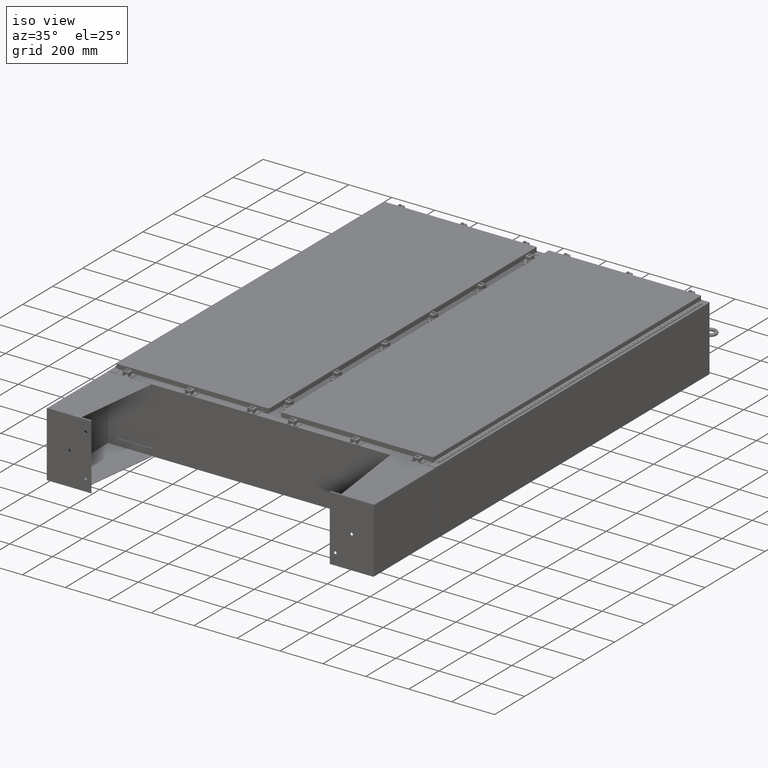
[diagram: clean part render]
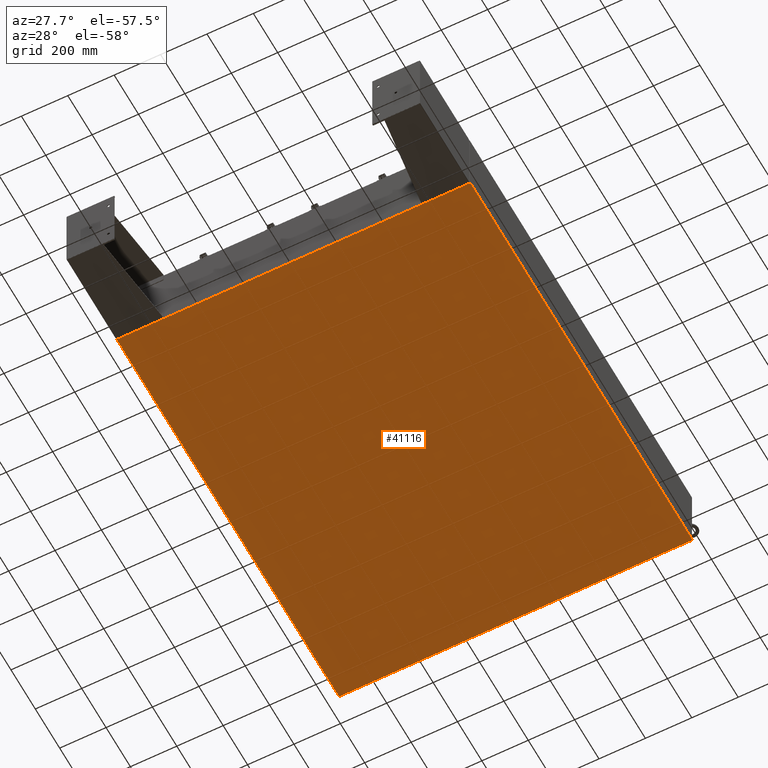
[diagram: tour spotlight — one face highlighted and labeled with its STEP entity id]
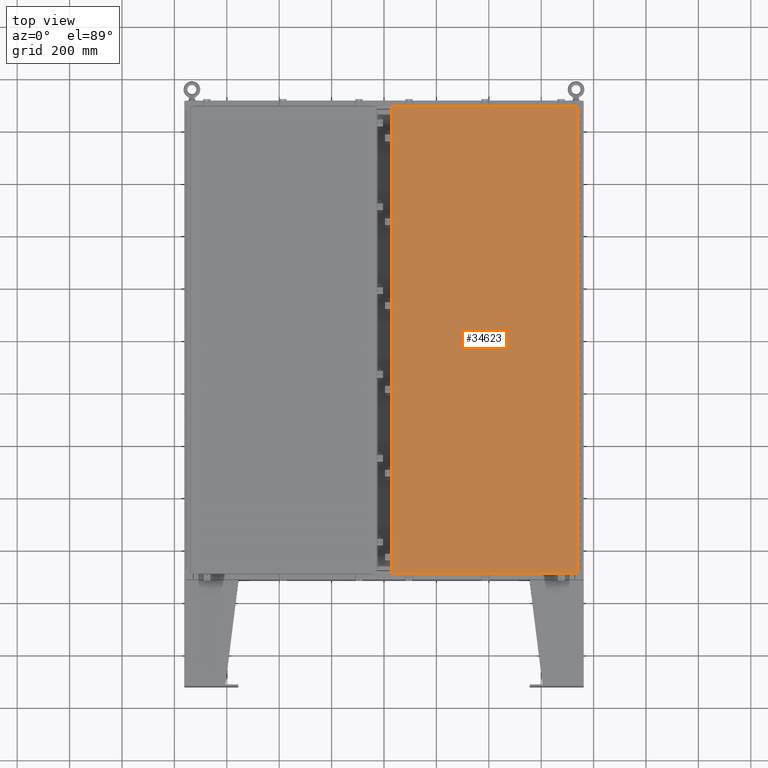
[diagram: tour spotlight — one face highlighted and labeled with its STEP entity id]
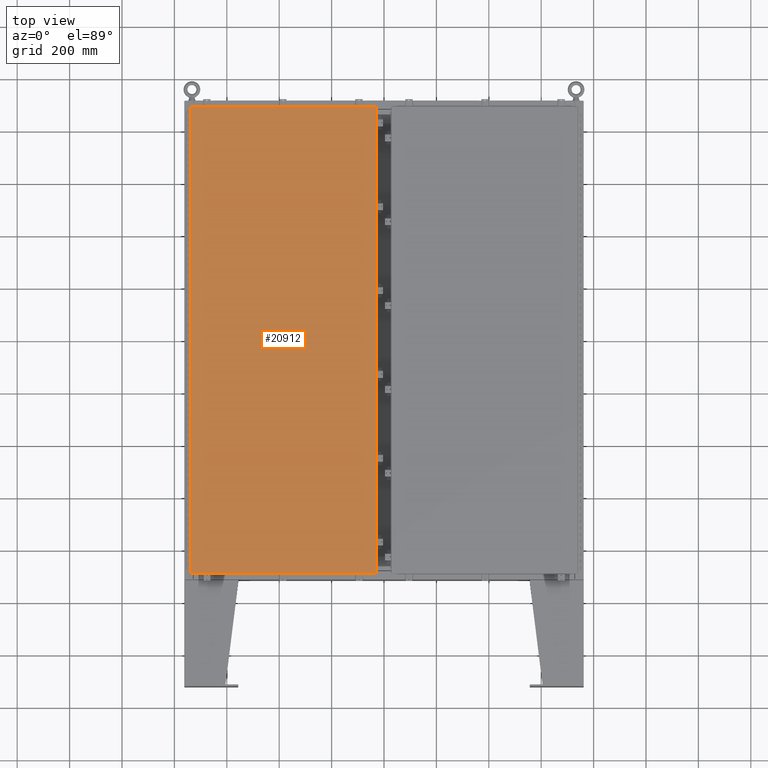
[diagram: tour spotlight — one face highlighted and labeled with its STEP entity id]
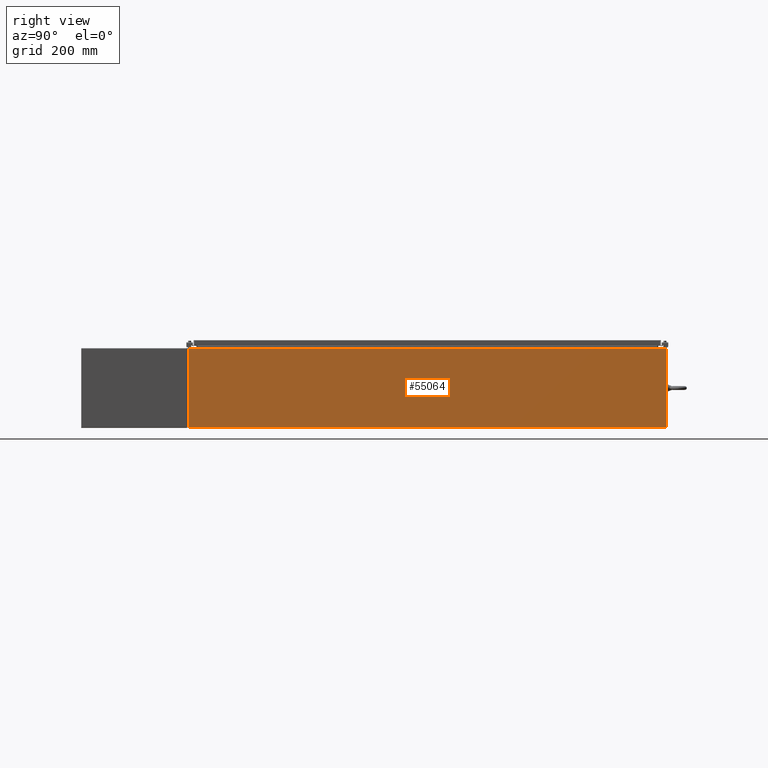
[diagram: tour spotlight — one face highlighted and labeled with its STEP entity id]
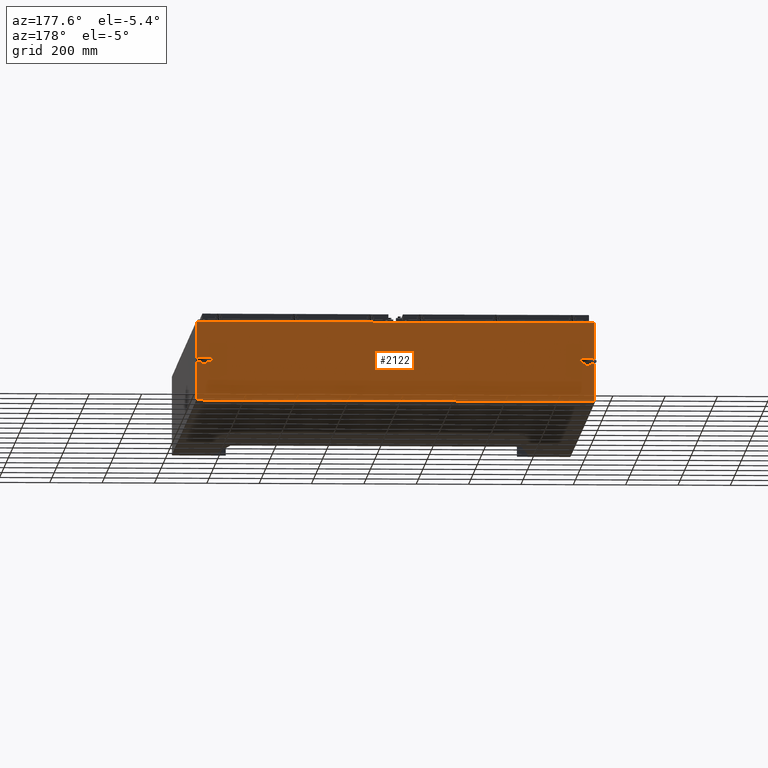
[diagram: tour spotlight — one face highlighted and labeled with its STEP entity id]
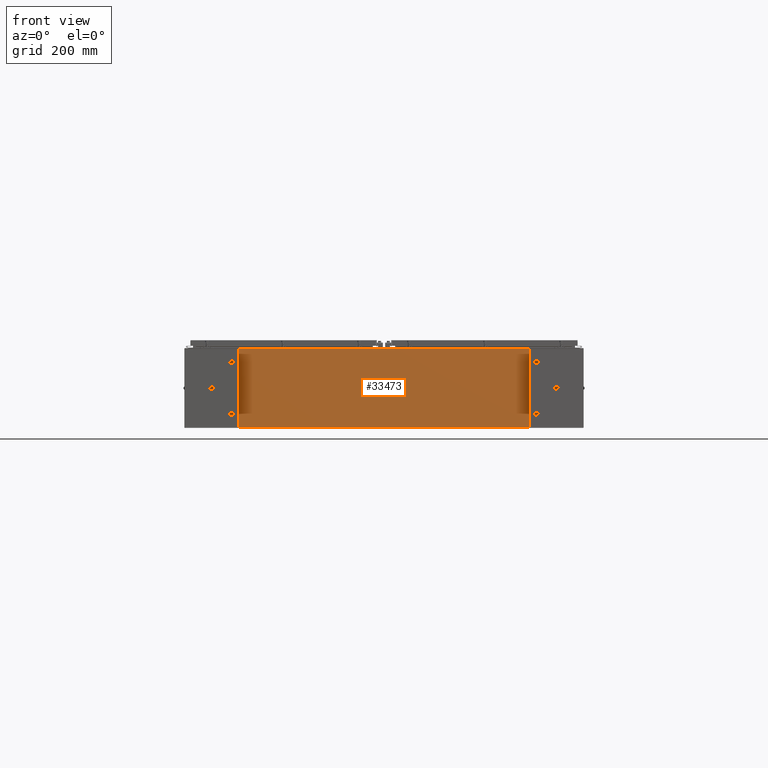
[diagram: tour spotlight — one face highlighted and labeled with its STEP entity id]
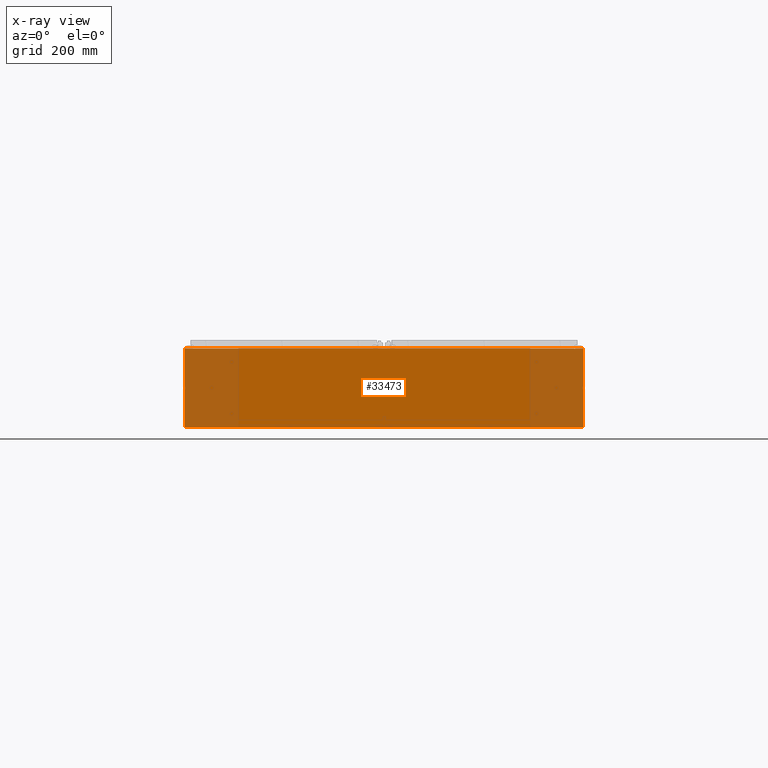
[diagram: x-ray of the same camera — body ghosted, this tour face saturated]
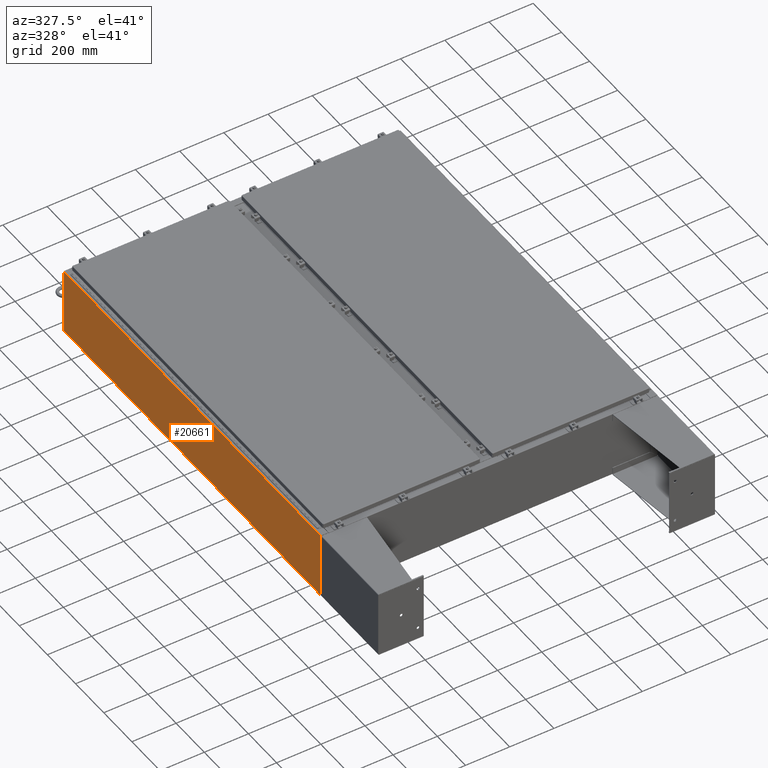
[diagram: tour spotlight — one face highlighted and labeled with its STEP entity id]
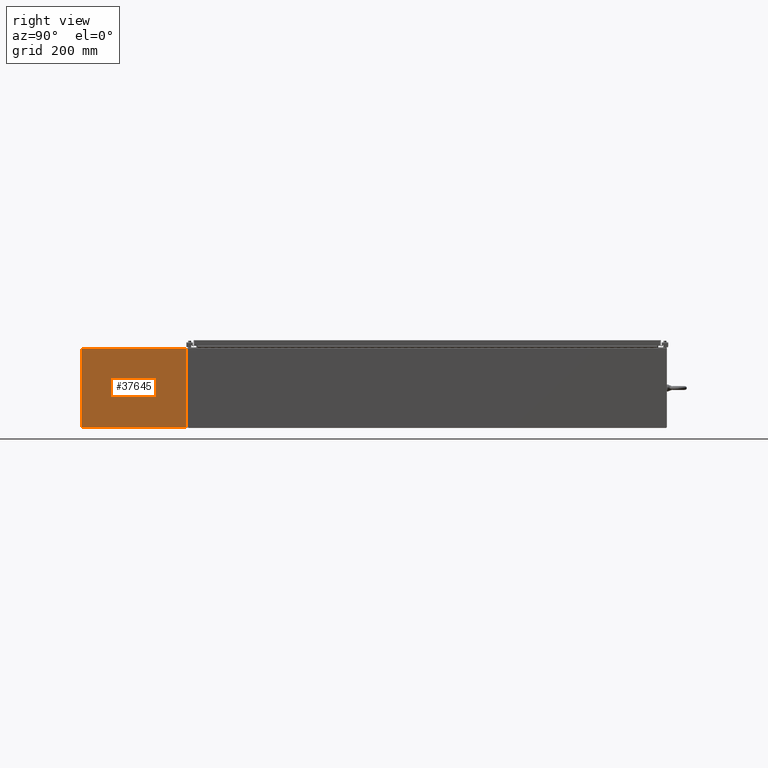
[diagram: tour spotlight — one face highlighted and labeled with its STEP entity id]
A machine part: a face-by-face anatomy tour. The part has 7158 B-rep faces; the first image is the clean iso view, then the 8 largest visible faces are spotlighted one at a time (largest first), each with its STEP entity span.

Face 1 — auxiliary view, entity #41116. In plain terms, the highlighted planar face has unit normal (0, 0, -1).
Definition (entity closure, byte-faithful):
#937 = DIRECTION ( 'NONE',  ( -0.0000000000000000000, -1.000000000000000000, -0.0000000000000000000 ) ) ;
#1901 = CARTESIAN_POINT ( 'NONE',  ( 29.91230000000000200, 35.92529999999999300, -0.07469999999999994700 ) ) ;
#4598 = LINE ( 'NONE', #50230, #34588 ) ;
#5244 = ORIENTED_EDGE ( 'NONE', *, *, #10549, .T. ) ;
#5724 = VERTEX_POINT ( 'NONE', #66764 ) ;
#9556 = EDGE_LOOP ( 'NONE', ( #17382, #48218, #41709, #5244 ) ) ;
#10549 = EDGE_CURVE ( 'NONE', #43401, #29275, #69427, .T. ) ;
#14454 = DIRECTION ( 'NONE',  ( -1.000000000000000000, -0.0000000000000000000, -0.0000000000000000000 ) ) ;
#17382 = ORIENTED_EDGE ( 'NONE', *, *, #24630, .F. ) ;
#17668 = CARTESIAN_POINT ( 'NONE',  ( 0.0000000000000000000, 0.0000000000000000000, -0.07470000000000000300 ) ) ;
#18616 = VERTEX_POINT ( 'NONE', #64485 ) ;
#19640 = DIRECTION ( 'NONE',  ( -0.0000000000000000000, 1.000000000000000000, -0.0000000000000000000 ) ) ;
#23677 = PLANE ( 'NONE',  #61835 ) ;
#24630 = EDGE_CURVE ( 'NONE', #5724, #29275, #25068, .T. ) ;
#25068 = LINE ( 'NONE', #57623, #42822 ) ;
#26581 = VECTOR ( 'NONE', #19640, 39.37007874015748100 ) ;
#28429 = LINE ( 'NONE', #43620, #26581 ) ;
#29275 = VERTEX_POINT ( 'NONE', #39884 ) ;
#29666 = DIRECTION ( 'NONE',  ( -1.000000000000000000, 0.0000000000000000000, -0.0000000000000000000 ) ) ;
#34588 = VECTOR ( 'NONE', #14454, 39.37007874015748100 ) ;
#39884 = CARTESIAN_POINT ( 'NONE',  ( 29.91229999999999800, -35.92530000000000000, -0.07470000000000000300 ) ) ;
#41116 = ADVANCED_FACE ( 'NONE', ( #50625 ), #23677, .T. ) ;
#41709 = ORIENTED_EDGE ( 'NONE', *, *, #72864, .F. ) ;
#42822 = VECTOR ( 'NONE', #45939, 39.37007874015748100 ) ;
#43401 = VERTEX_POINT ( 'NONE', #66487 ) ;
#43620 = CARTESIAN_POINT ( 'NONE',  ( -29.91230000000000900, -35.92530000000000000, -0.07469999999999994700 ) ) ;
#45939 = DIRECTION ( 'NONE',  ( 1.000000000000000000, 0.0000000000000000000, 0.0000000000000000000 ) ) ;
#48218 = ORIENTED_EDGE ( 'NONE', *, *, #66021, .T. ) ;
#50230 = CARTESIAN_POINT ( 'NONE',  ( -30.00000000000000700, 35.92529999999999300, -0.07470000000000000300 ) ) ;
#50625 = FACE_OUTER_BOUND ( 'NONE', #9556, .T. ) ;
#55554 = VECTOR ( 'NONE', #937, 39.37007874015748100 ) ;
#57623 = CARTESIAN_POINT ( 'NONE',  ( -30.00000000000000700, -35.92530000000000000, -0.07470000000000000300 ) ) ;
#61835 = AXIS2_PLACEMENT_3D ( 'NONE', #17668, #65338, #29666 ) ;
#64485 = CARTESIAN_POINT ( 'NONE',  ( -29.91230000000000900, 35.92529999999999300, -0.07470000000000000300 ) ) ;
#65338 = DIRECTION ( 'NONE',  ( 0.0000000000000000000, 0.0000000000000000000, -1.000000000000000000 ) ) ;
#66021 = EDGE_CURVE ( 'NONE', #5724, #18616, #28429, .T. ) ;
#66487 = CARTESIAN_POINT ( 'NONE',  ( 29.91230000000000200, 35.92529999999999300, -0.07469999999999994700 ) ) ;
#66764 = CARTESIAN_POINT ( 'NONE',  ( -29.91230000000000900, -35.92530000000000000, -0.07469999999999994700 ) ) ;
#69427 = LINE ( 'NONE', #1901, #55554 ) ;
#72864 = EDGE_CURVE ( 'NONE', #43401, #18616, #4598, .T. ) ;

Face 2 — top view, entity #34623. In plain terms, the highlighted planar face has unit normal (0, 0, -1).
Definition (entity closure, byte-faithful):
#45 = ORIENTED_EDGE ( 'NONE', *, *, #32141, .T. ) ;
#676 = LINE ( 'NONE', #41792, #12906 ) ;
#3732 = ORIENTED_EDGE ( 'NONE', *, *, #65523, .T. ) ;
#9393 = ORIENTED_EDGE ( 'NONE', *, *, #56529, .T. ) ;
#9497 = AXIS2_PLACEMENT_3D ( 'NONE', #41561, #35852, #25033 ) ;
#9643 = VERTEX_POINT ( 'NONE', #49554 ) ;
#10762 = VECTOR ( 'NONE', #24336, 39.37007874015748100 ) ;
#10910 = EDGE_LOOP ( 'NONE', ( #26142, #45, #3732, #9393 ) ) ;
#12906 = VECTOR ( 'NONE', #60009, 39.37007874015748100 ) ;
#15176 = CARTESIAN_POINT ( 'NONE',  ( -13.91780000000000500, -35.01820000000000700, 2.185478394931410600E-015 ) ) ;
#15321 = FACE_OUTER_BOUND ( 'NONE', #10910, .T. ) ;
#17992 = VERTEX_POINT ( 'NONE', #27349 ) ;
#18288 = VERTEX_POINT ( 'NONE', #75949 ) ;
#24336 = DIRECTION ( 'NONE',  ( -1.000000000000000000, -0.0000000000000000000, -0.0000000000000000000 ) ) ;
#25033 = DIRECTION ( 'NONE',  ( -1.000000000000000000, 0.0000000000000000000, -0.0000000000000000000 ) ) ;
#26142 = ORIENTED_EDGE ( 'NONE', *, *, #54597, .T. ) ;
#27349 = CARTESIAN_POINT ( 'NONE',  ( 13.91779999999999300, 35.01820000000000000, 2.185478394931410600E-015 ) ) ;
#32141 = EDGE_CURVE ( 'NONE', #9643, #17992, #676, .T. ) ;
#34623 = ADVANCED_FACE ( 'NONE', ( #15321 ), #47582, .F. ) ;
#35852 = DIRECTION ( 'NONE',  ( 0.0000000000000000000, 0.0000000000000000000, -1.000000000000000000 ) ) ;
#39748 = VECTOR ( 'NONE', #64553, 39.37007874015748100 ) ;
#40598 = CARTESIAN_POINT ( 'NONE',  ( -13.91780000000000500, 35.01819999999999300, 0.0000000000000000000 ) ) ;
#41561 = CARTESIAN_POINT ( 'NONE',  ( 0.0000000000000000000, 0.0000000000000000000, 0.0000000000000000000 ) ) ;
#41610 = LINE ( 'NONE', #40598, #39748 ) ;
#41792 = CARTESIAN_POINT ( 'NONE',  ( 13.91779999999999300, -35.01820000000000000, 0.0000000000000000000 ) ) ;
#44924 = DIRECTION ( 'NONE',  ( 1.000000000000000000, -0.0000000000000000000, -0.0000000000000000000 ) ) ;
#45526 = LINE ( 'NONE', #15176, #75131 ) ;
#47582 = PLANE ( 'NONE',  #9497 ) ;
#49554 = CARTESIAN_POINT ( 'NONE',  ( 13.91779999999999300, -35.01820000000000000, 0.0000000000000000000 ) ) ;
#54597 = EDGE_CURVE ( 'NONE', #74589, #9643, #45526, .T. ) ;
#56529 = EDGE_CURVE ( 'NONE', #18288, #74589, #41610, .T. ) ;
#58354 = LINE ( 'NONE', #71864, #10762 ) ;
#60009 = DIRECTION ( 'NONE',  ( 0.0000000000000000000, 1.000000000000000000, 0.0000000000000000000 ) ) ;
#62674 = CARTESIAN_POINT ( 'NONE',  ( -13.91780000000000500, -35.01820000000000700, 2.185478394931410600E-015 ) ) ;
#64553 = DIRECTION ( 'NONE',  ( 0.0000000000000000000, -1.000000000000000000, 0.0000000000000000000 ) ) ;
#65523 = EDGE_CURVE ( 'NONE', #17992, #18288, #58354, .T. ) ;
#71864 = CARTESIAN_POINT ( 'NONE',  ( 13.91779999999999300, 35.01820000000000000, 2.185478394931410600E-015 ) ) ;
#74589 = VERTEX_POINT ( 'NONE', #62674 ) ;
#75131 = VECTOR ( 'NONE', #44924, 39.37007874015748100 ) ;
#75949 = CARTESIAN_POINT ( 'NONE',  ( -13.91780000000000500, 35.01819999999999300, 0.0000000000000000000 ) ) ;

Face 3 — top view, entity #20912. In plain terms, the highlighted planar face has unit normal (0, 0, -1).
Definition (entity closure, byte-faithful):
#2617 = EDGE_LOOP ( 'NONE', ( #4711, #12112, #33565, #37474 ) ) ;
#4711 = ORIENTED_EDGE ( 'NONE', *, *, #34530, .T. ) ;
#5405 = DIRECTION ( 'NONE',  ( 0.0000000000000000000, -1.000000000000000000, 0.0000000000000000000 ) ) ;
#5675 = CARTESIAN_POINT ( 'NONE',  ( -13.91780000000000200, 35.01819999999999300, 0.0000000000000000000 ) ) ;
#6441 = EDGE_CURVE ( 'NONE', #32751, #47695, #10528, .T. ) ;
#6737 = AXIS2_PLACEMENT_3D ( 'NONE', #74888, #73048, #72983 ) ;
#9061 = LINE ( 'NONE', #34185, #70552 ) ;
#10528 = LINE ( 'NONE', #13371, #24562 ) ;
#11355 = LINE ( 'NONE', #5675, #69087 ) ;
#12112 = ORIENTED_EDGE ( 'NONE', *, *, #6441, .T. ) ;
#13029 = DIRECTION ( 'NONE',  ( 0.0000000000000000000, 1.000000000000000000, 0.0000000000000000000 ) ) ;
#13371 = CARTESIAN_POINT ( 'NONE',  ( 13.91779999999999600, -35.01820000000000000, 0.0000000000000000000 ) ) ;
#15053 = VERTEX_POINT ( 'NONE', #15667 ) ;
#15667 = CARTESIAN_POINT ( 'NONE',  ( -13.91780000000000200, 35.01819999999999300, 0.0000000000000000000 ) ) ;
#20912 = ADVANCED_FACE ( 'NONE', ( #76874 ), #73141, .F. ) ;
#22822 = VECTOR ( 'NONE', #76311, 39.37007874015748100 ) ;
#24562 = VECTOR ( 'NONE', #13029, 39.37007874015748100 ) ;
#32751 = VERTEX_POINT ( 'NONE', #49796 ) ;
#33565 = ORIENTED_EDGE ( 'NONE', *, *, #76162, .T. ) ;
#34185 = CARTESIAN_POINT ( 'NONE',  ( 13.91779999999999600, 35.01820000000000000, 2.185478394931410600E-015 ) ) ;
#34530 = EDGE_CURVE ( 'NONE', #73518, #32751, #68418, .T. ) ;
#37474 = ORIENTED_EDGE ( 'NONE', *, *, #48427, .T. ) ;
#40802 = CARTESIAN_POINT ( 'NONE',  ( -13.91780000000000200, -35.01820000000000700, 2.185478394931410600E-015 ) ) ;
#44374 = CARTESIAN_POINT ( 'NONE',  ( -13.91780000000000200, -35.01820000000000700, 2.185478394931410600E-015 ) ) ;
#47695 = VERTEX_POINT ( 'NONE', #64742 ) ;
#48427 = EDGE_CURVE ( 'NONE', #15053, #73518, #11355, .T. ) ;
#49796 = CARTESIAN_POINT ( 'NONE',  ( 13.91779999999999600, -35.01820000000000000, 0.0000000000000000000 ) ) ;
#64742 = CARTESIAN_POINT ( 'NONE',  ( 13.91779999999999600, 35.01820000000000000, 2.185478394931410600E-015 ) ) ;
#68418 = LINE ( 'NONE', #40802, #22822 ) ;
#69087 = VECTOR ( 'NONE', #5405, 39.37007874015748100 ) ;
#69767 = DIRECTION ( 'NONE',  ( -1.000000000000000000, -0.0000000000000000000, -0.0000000000000000000 ) ) ;
#70552 = VECTOR ( 'NONE', #69767, 39.37007874015748100 ) ;
#72983 = DIRECTION ( 'NONE',  ( -1.000000000000000000, 0.0000000000000000000, -0.0000000000000000000 ) ) ;
#73048 = DIRECTION ( 'NONE',  ( 0.0000000000000000000, 0.0000000000000000000, -1.000000000000000000 ) ) ;
#73141 = PLANE ( 'NONE',  #6737 ) ;
#73518 = VERTEX_POINT ( 'NONE', #44374 ) ;
#74888 = CARTESIAN_POINT ( 'NONE',  ( 0.0000000000000000000, 0.0000000000000000000, 0.0000000000000000000 ) ) ;
#76162 = EDGE_CURVE ( 'NONE', #47695, #15053, #9061, .T. ) ;
#76311 = DIRECTION ( 'NONE',  ( 1.000000000000000000, -0.0000000000000000000, -0.0000000000000000000 ) ) ;
#76874 = FACE_OUTER_BOUND ( 'NONE', #2617, .T. ) ;

Face 4 — right view, entity #55064. In plain terms, the highlighted planar face has unit normal (-1, -0, 0).
Definition (entity closure, byte-faithful):
#1168 = EDGE_LOOP ( 'NONE', ( #34542, #13906, #39160, #61565 ) ) ;
#2365 = AXIS2_PLACEMENT_3D ( 'NONE', #38791, #15296, #57010 ) ;
#3346 = FACE_OUTER_BOUND ( 'NONE', #1168, .T. ) ;
#7751 = DIRECTION ( 'NONE',  ( 2.019411370653570300E-031, -1.000000000000000000, -6.602337716106686600E-046 ) ) ;
#9252 = PLANE ( 'NONE',  #2365 ) ;
#13906 = ORIENTED_EDGE ( 'NONE', *, *, #70642, .T. ) ;
#15296 = DIRECTION ( 'NONE',  ( -1.000000000000000000, -2.019411370653570300E-031, 3.319545939341924800E-015 ) ) ;
#19550 = CARTESIAN_POINT ( 'NONE',  ( 29.99999999999999600, -35.92530000000000000, 0.01299999999999767800 ) ) ;
#21793 = CARTESIAN_POINT ( 'NONE',  ( 29.99999999999999600, 35.92529999999999300, 0.01299999999999767800 ) ) ;
#22251 = DIRECTION ( 'NONE',  ( 3.319545939341924800E-015, 3.688384377046583100E-016, 1.000000000000000000 ) ) ;
#26064 = CARTESIAN_POINT ( 'NONE',  ( 30.00000000000004600, 35.92529999999997900, 11.83760000000000700 ) ) ;
#26699 = DIRECTION ( 'NONE',  ( -0.0000000000000000000, -1.000000000000000000, -0.0000000000000000000 ) ) ;
#27275 = VERTEX_POINT ( 'NONE', #62230 ) ;
#28473 = VERTEX_POINT ( 'NONE', #61355 ) ;
#31772 = EDGE_CURVE ( 'NONE', #39145, #27275, #67026, .T. ) ;
#34542 = ORIENTED_EDGE ( 'NONE', *, *, #31772, .T. ) ;
#38473 = VECTOR ( 'NONE', #22251, 39.37007874015748100 ) ;
#38482 = CARTESIAN_POINT ( 'NONE',  ( 30.00000000000004600, 35.92530000000000000, 11.83760000000000700 ) ) ;
#38791 = CARTESIAN_POINT ( 'NONE',  ( 29.99999999999999600, 6.058234111960710600E-030, -9.984719183626930600E-014 ) ) ;
#39145 = VERTEX_POINT ( 'NONE', #26064 ) ;
#39160 = ORIENTED_EDGE ( 'NONE', *, *, #50724, .F. ) ;
#50724 = EDGE_CURVE ( 'NONE', #54148, #28473, #65569, .T. ) ;
#51261 = VECTOR ( 'NONE', #26699, 39.37007874015748100 ) ;
#51314 = VECTOR ( 'NONE', #59838, 39.37007874015748100 ) ;
#53847 = CARTESIAN_POINT ( 'NONE',  ( 29.99999999999999600, -35.92530000000000000, -9.984719183626930600E-014 ) ) ;
#54148 = VERTEX_POINT ( 'NONE', #21793 ) ;
#55064 = ADVANCED_FACE ( 'NONE', ( #3346 ), #9252, .F. ) ;
#56163 = LINE ( 'NONE', #57946, #38473 ) ;
#57010 = DIRECTION ( 'NONE',  ( 3.319545939341924800E-015, 0.0000000000000000000, 1.000000000000000000 ) ) ;
#57946 = CARTESIAN_POINT ( 'NONE',  ( 29.99999999999999600, 35.92529999999999300, -1.130978233623404600E-013 ) ) ;
#59838 = DIRECTION ( 'NONE',  ( -3.319545939341924800E-015, 0.0000000000000000000, -1.000000000000000000 ) ) ;
#60730 = EDGE_CURVE ( 'NONE', #54148, #39145, #56163, .T. ) ;
#61355 = CARTESIAN_POINT ( 'NONE',  ( 29.99999999999999600, -35.92530000000000000, 0.01299999999999767500 ) ) ;
#61565 = ORIENTED_EDGE ( 'NONE', *, *, #60730, .T. ) ;
#62230 = CARTESIAN_POINT ( 'NONE',  ( 30.00000000000003600, -35.92530000000000700, 11.83759999999999500 ) ) ;
#63721 = VECTOR ( 'NONE', #7751, 39.37007874015748100 ) ;
#65569 = LINE ( 'NONE', #19550, #63721 ) ;
#67026 = LINE ( 'NONE', #38482, #51261 ) ;
#67075 = LINE ( 'NONE', #53847, #51314 ) ;
#70642 = EDGE_CURVE ( 'NONE', #27275, #28473, #67075, .T. ) ;

Face 5 — auxiliary view, entity #2122. In plain terms, the highlighted planar face has unit normal (0, -1, 0).
Definition (entity closure, byte-faithful):
#267 = DIRECTION ( 'NONE',  ( 1.000000000000000000, 0.0000000000000000000, 0.0000000000000000000 ) ) ;
#488 = AXIS2_PLACEMENT_3D ( 'NONE', #70458, #70377, #37840 ) ;
#1353 = ORIENTED_EDGE ( 'NONE', *, *, #48514, .F. ) ;
#1379 = ORIENTED_EDGE ( 'NONE', *, *, #76909, .F. ) ;
#1816 = VECTOR ( 'NONE', #41368, 39.37007874015748100 ) ;
#1837 = VERTEX_POINT ( 'NONE', #41892 ) ;
#2122 = ADVANCED_FACE ( 'NONE', ( #55857, #55066, #40022 ), #28079, .F. ) ;
#2733 = CARTESIAN_POINT ( 'NONE',  ( -28.67454999999998600, 0.0000000000000000000, 5.874950000000000100 ) ) ;
#4177 = CARTESIAN_POINT ( 'NONE',  ( 28.67454999999998200, 0.0000000000000000000, 5.925300000000001800 ) ) ;
#4531 = VERTEX_POINT ( 'NONE', #59567 ) ;
#5168 = ORIENTED_EDGE ( 'NONE', *, *, #28600, .F. ) ;
#5325 = CARTESIAN_POINT ( 'NONE',  ( 28.63720000000000000, 0.0000000000000000000, 0.0000000000000000000 ) ) ;
#7524 = CARTESIAN_POINT ( 'NONE',  ( 28.63720000000000000, 0.0000000000000000000, 5.912299999999999200 ) ) ;
#7654 = VERTEX_POINT ( 'NONE', #7524 ) ;
#7729 = CIRCLE ( 'NONE', #32652, 0.01867499999999949400 ) ;
#8089 = ORIENTED_EDGE ( 'NONE', *, *, #17587, .F. ) ;
#8996 = ORIENTED_EDGE ( 'NONE', *, *, #23605, .T. ) ;
#9794 = AXIS2_PLACEMENT_3D ( 'NONE', #28247, #28339, #27992 ) ;
#9883 = ORIENTED_EDGE ( 'NONE', *, *, #63404, .F. ) ;
#10499 = CARTESIAN_POINT ( 'NONE',  ( -28.67454999999998600, 0.0000000000000000000, 5.925300000000001800 ) ) ;
#12159 = VECTOR ( 'NONE', #63341, 39.37007874015748100 ) ;
#12364 = EDGE_CURVE ( 'NONE', #38281, #62439, #72831, .T. ) ;
#13515 = EDGE_CURVE ( 'NONE', #69771, #65421, #33701, .T. ) ;
#14038 = LINE ( 'NONE', #15668, #12159 ) ;
#14338 = DIRECTION ( 'NONE',  ( 0.0000000000000000000, 0.0000000000000000000, 1.000000000000000000 ) ) ;
#14582 = DIRECTION ( 'NONE',  ( 0.0000000000000000000, 1.000000000000000000, 0.0000000000000000000 ) ) ;
#15125 = CARTESIAN_POINT ( 'NONE',  ( -28.86329999999999500, 0.0000000000000000000, 0.0000000000000000000 ) ) ;
#15512 = EDGE_CURVE ( 'NONE', #38265, #45803, #24652, .T. ) ;
#15668 = CARTESIAN_POINT ( 'NONE',  ( -29.92529999999999300, 0.0000000000000000000, -5.925300000000000000 ) ) ;
#16261 = ORIENTED_EDGE ( 'NONE', *, *, #13515, .T. ) ;
#16382 = ORIENTED_EDGE ( 'NONE', *, *, #15512, .F. ) ;
#17587 = EDGE_CURVE ( 'NONE', #4531, #18705, #74482, .T. ) ;
#17892 = CIRCLE ( 'NONE', #29536, 0.3750000000000008300 ) ;
#18523 = DIRECTION ( 'NONE',  ( 0.0000000000000000000, 1.000000000000000000, -0.0000000000000000000 ) ) ;
#18705 = VERTEX_POINT ( 'NONE', #60394 ) ;
#19026 = LINE ( 'NONE', #33384, #64687 ) ;
#19335 = ORIENTED_EDGE ( 'NONE', *, *, #72770, .T. ) ;
#20511 = VECTOR ( 'NONE', #267, 39.37007874015748100 ) ;
#21767 = EDGE_CURVE ( 'NONE', #39211, #64353, #62923, .T. ) ;
#23452 = VERTEX_POINT ( 'NONE', #69974 ) ;
#23605 = EDGE_CURVE ( 'NONE', #54184, #69771, #41093, .T. ) ;
#24652 = CIRCLE ( 'NONE', #73768, 0.3750000000000008300 ) ;
#24726 = ORIENTED_EDGE ( 'NONE', *, *, #12364, .T. ) ;
#24911 = DIRECTION ( 'NONE',  ( -0.0000000000000000000, 1.000000000000000000, -0.0000000000000000000 ) ) ;
#25339 = CARTESIAN_POINT ( 'NONE',  ( -28.86329999999999500, 0.0000000000000000000, -0.3750000000000008300 ) ) ;
#26816 = ORIENTED_EDGE ( 'NONE', *, *, #66664, .T. ) ;
#27225 = CARTESIAN_POINT ( 'NONE',  ( 28.67455000000051200, 0.0000000000000000000, 2.489259891826876500E-012 ) ) ;
#27301 = VECTOR ( 'NONE', #32150, 39.37007874015748100 ) ;
#27494 = DIRECTION ( 'NONE',  ( 0.0000000000000000000, 0.0000000000000000000, -1.000000000000000000 ) ) ;
#27668 = EDGE_CURVE ( 'NONE', #57886, #39211, #7729, .T. ) ;
#27992 = DIRECTION ( 'NONE',  ( 0.0000000000000000000, -0.0000000000000000000, -1.000000000000000000 ) ) ;
#28079 = PLANE ( 'NONE',  #9794 ) ;
#28247 = CARTESIAN_POINT ( 'NONE',  ( 0.0000000000000000000, 0.0000000000000000000, 0.0000000000000000000 ) ) ;
#28339 = DIRECTION ( 'NONE',  ( 0.0000000000000000000, -1.000000000000000000, 0.0000000000000000000 ) ) ;
#28420 = ORIENTED_EDGE ( 'NONE', *, *, #21767, .F. ) ;
#28600 = EDGE_CURVE ( 'NONE', #54184, #23452, #46057, .T. ) ;
#29536 = AXIS2_PLACEMENT_3D ( 'NONE', #54252, #18523, #60217 ) ;
#29658 = CARTESIAN_POINT ( 'NONE',  ( -29.92529999999999300, 0.0000000000000000000, 5.925300000000001800 ) ) ;
#29971 = DIRECTION ( 'NONE',  ( 0.0000000000000000000, 1.000000000000000000, 0.0000000000000000000 ) ) ;
#30982 = CARTESIAN_POINT ( 'NONE',  ( 28.65587500000000200, 0.0000000000000000000, 5.874950000000000100 ) ) ;
#31262 = CARTESIAN_POINT ( 'NONE',  ( -29.92529999999999300, 0.0000000000000000000, 5.925300000000001800 ) ) ;
#31485 = EDGE_CURVE ( 'NONE', #1837, #7654, #55939, .T. ) ;
#32150 = DIRECTION ( 'NONE',  ( -0.0000000000000000000, -0.0000000000000000000, 1.000000000000000000 ) ) ;
#32526 = CARTESIAN_POINT ( 'NONE',  ( 28.63720000000000000, 0.0000000000000000000, 5.874950000000000100 ) ) ;
#32652 = AXIS2_PLACEMENT_3D ( 'NONE', #60622, #24911, #66555 ) ;
#33247 = ORIENTED_EDGE ( 'NONE', *, *, #27668, .F. ) ;
#33384 = CARTESIAN_POINT ( 'NONE',  ( -29.92529999999999300, 0.0000000000000000000, 5.925300000000001800 ) ) ;
#33701 = LINE ( 'NONE', #41291, #1816 ) ;
#35686 = DIRECTION ( 'NONE',  ( 1.000000000000000000, 0.0000000000000000000, 0.0000000000000000000 ) ) ;
#36972 = DIRECTION ( 'NONE',  ( 0.0000000000000000000, 0.0000000000000000000, 1.000000000000000000 ) ) ;
#36986 = DIRECTION ( 'NONE',  ( 0.0000000000000000000, 0.0000000000000000000, -1.000000000000000000 ) ) ;
#37316 = CARTESIAN_POINT ( 'NONE',  ( -28.67454999999998600, 0.0000000000000000000, 0.0000000000000000000 ) ) ;
#37840 = DIRECTION ( 'NONE',  ( 0.0000000000000000000, 0.0000000000000000000, -1.000000000000000000 ) ) ;
#38265 = VERTEX_POINT ( 'NONE', #25339 ) ;
#38281 = VERTEX_POINT ( 'NONE', #67237 ) ;
#39211 = VERTEX_POINT ( 'NONE', #2733 ) ;
#40022 = FACE_OUTER_BOUND ( 'NONE', #65719, .T. ) ;
#40290 = LINE ( 'NONE', #63188, #70009 ) ;
#41093 = LINE ( 'NONE', #29658, #70773 ) ;
#41168 = DIRECTION ( 'NONE',  ( 0.0000000000000000000, 0.0000000000000000000, 1.000000000000000000 ) ) ;
#41291 = CARTESIAN_POINT ( 'NONE',  ( 29.92530000000000400, 0.0000000000000000000, 5.925300000000001800 ) ) ;
#41368 = DIRECTION ( 'NONE',  ( 0.0000000000000000000, 0.0000000000000000000, -1.000000000000000000 ) ) ;
#41508 = EDGE_CURVE ( 'NONE', #1837, #57886, #40290, .T. ) ;
#41892 = CARTESIAN_POINT ( 'NONE',  ( -28.63719999999998900, 0.0000000000000000000, 5.912299999999999200 ) ) ;
#44200 = EDGE_LOOP ( 'NONE', ( #1353, #8089 ) ) ;
#45803 = VERTEX_POINT ( 'NONE', #62445 ) ;
#46057 = LINE ( 'NONE', #27225, #60008 ) ;
#47114 = VECTOR ( 'NONE', #36972, 39.37007874015748100 ) ;
#48130 = ORIENTED_EDGE ( 'NONE', *, *, #41508, .F. ) ;
#48514 = EDGE_CURVE ( 'NONE', #18705, #4531, #17892, .T. ) ;
#48830 = AXIS2_PLACEMENT_3D ( 'NONE', #30982, #72501, #36986 ) ;
#51517 = VERTEX_POINT ( 'NONE', #32526 ) ;
#52856 = CARTESIAN_POINT ( 'NONE',  ( 29.92530000000000400, 0.0000000000000000000, 5.925300000000001800 ) ) ;
#53304 = CARTESIAN_POINT ( 'NONE',  ( -29.92529999999999300, 0.0000000000000000000, 5.925300000000001800 ) ) ;
#53797 = CIRCLE ( 'NONE', #48830, 0.01867499999999949400 ) ;
#54184 = VERTEX_POINT ( 'NONE', #4177 ) ;
#54252 = CARTESIAN_POINT ( 'NONE',  ( 28.86329999999999500, 0.0000000000000000000, 0.0000000000000000000 ) ) ;
#55066 = FACE_BOUND ( 'NONE', #63790, .T. ) ;
#55733 = ORIENTED_EDGE ( 'NONE', *, *, #31485, .T. ) ;
#55857 = FACE_BOUND ( 'NONE', #44200, .T. ) ;
#55939 = LINE ( 'NONE', #71697, #20511 ) ;
#56812 = DIRECTION ( 'NONE',  ( 1.000000000000000000, 0.0000000000000000000, 0.0000000000000000000 ) ) ;
#57674 = CARTESIAN_POINT ( 'NONE',  ( 29.92530000000000400, 0.0000000000000000000, -5.925300000000000000 ) ) ;
#57886 = VERTEX_POINT ( 'NONE', #72513 ) ;
#59567 = CARTESIAN_POINT ( 'NONE',  ( 28.86329999999999500, 0.0000000000000000000, -0.3750000000000008300 ) ) ;
#60008 = VECTOR ( 'NONE', #68802, 39.37007874015748100 ) ;
#60217 = DIRECTION ( 'NONE',  ( 0.0000000000000000000, 0.0000000000000000000, -1.000000000000000000 ) ) ;
#60394 = CARTESIAN_POINT ( 'NONE',  ( 28.86329999999999500, 0.0000000000000000000, 0.3750000000000008300 ) ) ;
#60622 = CARTESIAN_POINT ( 'NONE',  ( -28.65587499999998800, 0.0000000000000000000, 5.874950000000000100 ) ) ;
#61166 = ORIENTED_EDGE ( 'NONE', *, *, #74188, .F. ) ;
#61370 = VECTOR ( 'NONE', #41168, 39.37007874015748100 ) ;
#62439 = VERTEX_POINT ( 'NONE', #53304 ) ;
#62445 = CARTESIAN_POINT ( 'NONE',  ( -28.86329999999999500, 0.0000000000000000000, 0.3750000000000008300 ) ) ;
#62923 = LINE ( 'NONE', #37316, #47114 ) ;
#63188 = CARTESIAN_POINT ( 'NONE',  ( -28.63719999999998900, 0.0000000000000000000, 0.0000000000000000000 ) ) ;
#63273 = CIRCLE ( 'NONE', #63479, 0.3750000000000008300 ) ;
#63341 = DIRECTION ( 'NONE',  ( -1.000000000000000000, -0.0000000000000000000, -0.0000000000000000000 ) ) ;
#63404 = EDGE_CURVE ( 'NONE', #45803, #38265, #63273, .T. ) ;
#63479 = AXIS2_PLACEMENT_3D ( 'NONE', #65600, #29971, #71509 ) ;
#63790 = EDGE_LOOP ( 'NONE', ( #9883, #16382 ) ) ;
#64353 = VERTEX_POINT ( 'NONE', #10499 ) ;
#64687 = VECTOR ( 'NONE', #56812, 39.37007874015748100 ) ;
#65092 = LINE ( 'NONE', #5325, #61370 ) ;
#65421 = VERTEX_POINT ( 'NONE', #57674 ) ;
#65600 = CARTESIAN_POINT ( 'NONE',  ( -28.86329999999999500, 0.0000000000000000000, 0.0000000000000000000 ) ) ;
#65719 = EDGE_LOOP ( 'NONE', ( #28420, #33247, #48130, #55733, #61166, #1379, #5168, #8996, #16261, #19335, #24726, #26816 ) ) ;
#66555 = DIRECTION ( 'NONE',  ( 0.0000000000000000000, 0.0000000000000000000, -1.000000000000000000 ) ) ;
#66664 = EDGE_CURVE ( 'NONE', #62439, #64353, #19026, .T. ) ;
#67237 = CARTESIAN_POINT ( 'NONE',  ( -29.92529999999999300, 0.0000000000000000000, -5.925300000000000000 ) ) ;
#68802 = DIRECTION ( 'NONE',  ( 8.681145560800009800E-014, 0.0000000000000000000, -1.000000000000000000 ) ) ;
#69771 = VERTEX_POINT ( 'NONE', #52856 ) ;
#69974 = CARTESIAN_POINT ( 'NONE',  ( 28.67455000000000000, 0.0000000000000000000, 5.874950000000000100 ) ) ;
#70009 = VECTOR ( 'NONE', #27494, 39.37007874015748100 ) ;
#70377 = DIRECTION ( 'NONE',  ( 0.0000000000000000000, 1.000000000000000000, -0.0000000000000000000 ) ) ;
#70458 = CARTESIAN_POINT ( 'NONE',  ( 28.86329999999999500, 0.0000000000000000000, 0.0000000000000000000 ) ) ;
#70773 = VECTOR ( 'NONE', #35686, 39.37007874015748100 ) ;
#71509 = DIRECTION ( 'NONE',  ( 0.0000000000000000000, 0.0000000000000000000, 1.000000000000000000 ) ) ;
#71697 = CARTESIAN_POINT ( 'NONE',  ( -28.63719999999999300, 0.0000000000000000000, 5.912299999999999200 ) ) ;
#72501 = DIRECTION ( 'NONE',  ( -0.0000000000000000000, 1.000000000000000000, -0.0000000000000000000 ) ) ;
#72513 = CARTESIAN_POINT ( 'NONE',  ( -28.63719999999998900, 0.0000000000000000000, 5.874950000000000100 ) ) ;
#72770 = EDGE_CURVE ( 'NONE', #65421, #38281, #14038, .T. ) ;
#72831 = LINE ( 'NONE', #31262, #27301 ) ;
#73768 = AXIS2_PLACEMENT_3D ( 'NONE', #15125, #14582, #14338 ) ;
#74188 = EDGE_CURVE ( 'NONE', #51517, #7654, #65092, .T. ) ;
#74482 = CIRCLE ( 'NONE', #488, 0.3750000000000008300 ) ;
#76909 = EDGE_CURVE ( 'NONE', #23452, #51517, #53797, .T. ) ;

Face 6 — front view, entity #33473. An x-ray twin of the same camera follows (body ghosted, this face saturated) — the face is partly hidden behind the body. In plain terms, the highlighted planar face has unit normal (-0, 1, 0).
Definition (entity closure, byte-faithful):
#293 = CARTESIAN_POINT ( 'NONE',  ( 28.63720000000003600, 0.0000000000000000000, 0.0000000000000000000 ) ) ;
#1391 = CARTESIAN_POINT ( 'NONE',  ( 29.92530000000000400, 3.496765431890256900E-014, 5.925300000000000000 ) ) ;
#2227 = DIRECTION ( 'NONE',  ( 1.000000000000000000, -9.721131394294623300E-032, 0.0000000000000000000 ) ) ;
#2850 = LINE ( 'NONE', #36845, #30961 ) ;
#3096 = CARTESIAN_POINT ( 'NONE',  ( 28.63720000000000000, 3.496765431890256900E-014, 5.874950000000001000 ) ) ;
#3906 = EDGE_CURVE ( 'NONE', #8797, #14381, #22155, .T. ) ;
#5473 = LINE ( 'NONE', #14564, #17695 ) ;
#5686 = CARTESIAN_POINT ( 'NONE',  ( -28.65587499999998800, 0.0000000000000000000, 5.874949999999999200 ) ) ;
#6046 = CARTESIAN_POINT ( 'NONE',  ( -29.92529999999999300, 0.0000000000000000000, 5.925300000000000000 ) ) ;
#6161 = DIRECTION ( 'NONE',  ( 0.0000000000000000000, 0.0000000000000000000, -1.000000000000000000 ) ) ;
#6356 = DIRECTION ( 'NONE',  ( 0.0000000000000000000, 0.0000000000000000000, 1.000000000000000000 ) ) ;
#6488 = LINE ( 'NONE', #71401, #20576 ) ;
#6781 = DIRECTION ( 'NONE',  ( 0.0000000000000000000, 0.0000000000000000000, 1.000000000000000000 ) ) ;
#7376 = DIRECTION ( 'NONE',  ( 1.000000000000000000, -9.721131394294625500E-032, 0.0000000000000000000 ) ) ;
#8077 = VECTOR ( 'NONE', #6781, 39.37007874015748100 ) ;
#8392 = DIRECTION ( 'NONE',  ( 8.681145560800009800E-014, 0.0000000000000000000, -1.000000000000000000 ) ) ;
#8525 = LINE ( 'NONE', #62026, #54287 ) ;
#8797 = VERTEX_POINT ( 'NONE', #18249 ) ;
#8966 = ORIENTED_EDGE ( 'NONE', *, *, #18174, .F. ) ;
#9250 = CARTESIAN_POINT ( 'NONE',  ( 28.63720000000000000, 3.059669752903974500E-014, 5.912300000000000100 ) ) ;
#10256 = EDGE_CURVE ( 'NONE', #38941, #36874, #28534, .T. ) ;
#11809 = VERTEX_POINT ( 'NONE', #3096 ) ;
#12321 = EDGE_CURVE ( 'NONE', #36874, #41697, #32937, .T. ) ;
#12672 = FACE_OUTER_BOUND ( 'NONE', #65409, .T. ) ;
#13113 = CARTESIAN_POINT ( 'NONE',  ( -29.92529999999999300, 0.0000000000000000000, 5.925300000000000000 ) ) ;
#13767 = VERTEX_POINT ( 'NONE', #17907 ) ;
#14381 = VERTEX_POINT ( 'NONE', #29111 ) ;
#14564 = CARTESIAN_POINT ( 'NONE',  ( 28.67455000000054700, 0.0000000000000000000, 2.489259891826876500E-012 ) ) ;
#15111 = EDGE_CURVE ( 'NONE', #17160, #16480, #73354, .T. ) ;
#16480 = VERTEX_POINT ( 'NONE', #21403 ) ;
#16640 = LINE ( 'NONE', #13113, #76127 ) ;
#17043 = EDGE_CURVE ( 'NONE', #16480, #8797, #2850, .T. ) ;
#17160 = VERTEX_POINT ( 'NONE', #23209 ) ;
#17695 = VECTOR ( 'NONE', #8392, 39.37007874015748100 ) ;
#17907 = CARTESIAN_POINT ( 'NONE',  ( 28.67454999999998200, 3.496765431890256900E-014, 5.925300000000000000 ) ) ;
#18174 = EDGE_CURVE ( 'NONE', #13767, #74140, #5473, .T. ) ;
#18237 = ORIENTED_EDGE ( 'NONE', *, *, #27205, .F. ) ;
#18249 = CARTESIAN_POINT ( 'NONE',  ( -29.92529999999996100, -3.496765431890256900E-014, -5.925300000000000000 ) ) ;
#18919 = VECTOR ( 'NONE', #35900, 39.37007874015748100 ) ;
#19110 = DIRECTION ( 'NONE',  ( 1.000000000000000000, -9.721131394294623300E-032, 0.0000000000000000000 ) ) ;
#20576 = VECTOR ( 'NONE', #7376, 39.37007874015748100 ) ;
#21403 = CARTESIAN_POINT ( 'NONE',  ( 29.92530000000003900, 0.0000000000000000000, -5.925300000000000000 ) ) ;
#22155 = LINE ( 'NONE', #6046, #8077 ) ;
#22223 = ORIENTED_EDGE ( 'NONE', *, *, #3906, .T. ) ;
#22667 = CARTESIAN_POINT ( 'NONE',  ( 28.67455000000000000, 3.496765431890256900E-014, 5.874950000000001000 ) ) ;
#23209 = CARTESIAN_POINT ( 'NONE',  ( 29.92530000000000400, 3.496765431890256900E-014, 5.925300000000000000 ) ) ;
#25770 = CARTESIAN_POINT ( 'NONE',  ( -28.63719999999995400, 0.0000000000000000000, 0.0000000000000000000 ) ) ;
#27205 = EDGE_CURVE ( 'NONE', #63052, #38941, #74805, .T. ) ;
#27250 = CARTESIAN_POINT ( 'NONE',  ( 0.0000000000000000000, 0.0000000000000000000, 0.0000000000000000000 ) ) ;
#27665 = ORIENTED_EDGE ( 'NONE', *, *, #10256, .F. ) ;
#28534 = CIRCLE ( 'NONE', #32171, 0.01867499999999949400 ) ;
#28707 = ORIENTED_EDGE ( 'NONE', *, *, #17043, .T. ) ;
#29024 = CARTESIAN_POINT ( 'NONE',  ( 28.65587500000000200, 3.496765431890256900E-014, 5.874950000000001000 ) ) ;
#29111 = CARTESIAN_POINT ( 'NONE',  ( -29.92529999999999300, 0.0000000000000000000, 5.925300000000000000 ) ) ;
#29140 = EDGE_CURVE ( 'NONE', #13767, #17160, #8525, .T. ) ;
#30185 = EDGE_CURVE ( 'NONE', #63052, #64774, #6488, .T. ) ;
#30274 = CARTESIAN_POINT ( 'NONE',  ( -28.63719999999998900, -4.370956789862821100E-015, 5.912300000000000100 ) ) ;
#30457 = ORIENTED_EDGE ( 'NONE', *, *, #76858, .F. ) ;
#30961 = VECTOR ( 'NONE', #35724, 39.37007874015748100 ) ;
#32171 = AXIS2_PLACEMENT_3D ( 'NONE', #5686, #68063, #66941 ) ;
#32937 = LINE ( 'NONE', #35983, #18919 ) ;
#33473 = ADVANCED_FACE ( 'NONE', ( #12672 ), #50974, .F. ) ;
#35052 = DIRECTION ( 'NONE',  ( 0.0000000000000000000, 0.0000000000000000000, -1.000000000000000000 ) ) ;
#35724 = DIRECTION ( 'NONE',  ( -1.000000000000000000, 9.721131394294623300E-032, 0.0000000000000000000 ) ) ;
#35900 = DIRECTION ( 'NONE',  ( 0.0000000000000000000, 0.0000000000000000000, 1.000000000000000000 ) ) ;
#35983 = CARTESIAN_POINT ( 'NONE',  ( -28.67454999999995400, 0.0000000000000000000, 0.0000000000000000000 ) ) ;
#36078 = ORIENTED_EDGE ( 'NONE', *, *, #12321, .F. ) ;
#36845 = CARTESIAN_POINT ( 'NONE',  ( -29.92529999999996100, -3.496765431890256900E-014, -5.925300000000000000 ) ) ;
#36874 = VERTEX_POINT ( 'NONE', #75091 ) ;
#38941 = VERTEX_POINT ( 'NONE', #48533 ) ;
#39269 = DIRECTION ( 'NONE',  ( 0.0000000000000000000, 0.0000000000000000000, -1.000000000000000000 ) ) ;
#41676 = VECTOR ( 'NONE', #6356, 39.37007874015748100 ) ;
#41697 = VERTEX_POINT ( 'NONE', #60543 ) ;
#48533 = CARTESIAN_POINT ( 'NONE',  ( -28.63719999999998900, 0.0000000000000000000, 5.874949999999999200 ) ) ;
#50974 = PLANE ( 'NONE',  #72784 ) ;
#51113 = ORIENTED_EDGE ( 'NONE', *, *, #15111, .T. ) ;
#54287 = VECTOR ( 'NONE', #2227, 39.37007874015748100 ) ;
#54386 = EDGE_CURVE ( 'NONE', #14381, #41697, #16640, .T. ) ;
#55715 = ORIENTED_EDGE ( 'NONE', *, *, #29140, .T. ) ;
#57496 = LINE ( 'NONE', #293, #41676 ) ;
#59152 = VECTOR ( 'NONE', #67407, 39.37007874015748100 ) ;
#59295 = ORIENTED_EDGE ( 'NONE', *, *, #30185, .T. ) ;
#60179 = EDGE_CURVE ( 'NONE', #74140, #11809, #73763, .T. ) ;
#60543 = CARTESIAN_POINT ( 'NONE',  ( -28.67454999999998600, 0.0000000000000000000, 5.925300000000000000 ) ) ;
#62026 = CARTESIAN_POINT ( 'NONE',  ( -29.92529999999999300, 0.0000000000000000000, 5.925300000000000000 ) ) ;
#63052 = VERTEX_POINT ( 'NONE', #30274 ) ;
#63078 = ORIENTED_EDGE ( 'NONE', *, *, #60179, .F. ) ;
#64774 = VERTEX_POINT ( 'NONE', #9250 ) ;
#65409 = EDGE_LOOP ( 'NONE', ( #36078, #27665, #18237, #59295, #30457, #63078, #8966, #55715, #51113, #28707, #22223, #75158 ) ) ;
#66941 = DIRECTION ( 'NONE',  ( 0.0000000000000000000, 0.0000000000000000000, -1.000000000000000000 ) ) ;
#67407 = DIRECTION ( 'NONE',  ( 0.0000000000000000000, 0.0000000000000000000, -1.000000000000000000 ) ) ;
#67609 = AXIS2_PLACEMENT_3D ( 'NONE', #29024, #70601, #35052 ) ;
#68063 = DIRECTION ( 'NONE',  ( -9.721131394294625500E-032, 1.000000000000000000, -0.0000000000000000000 ) ) ;
#70601 = DIRECTION ( 'NONE',  ( -9.721131394294625500E-032, 1.000000000000000000, -0.0000000000000000000 ) ) ;
#71401 = CARTESIAN_POINT ( 'NONE',  ( -28.63719999999999300, -4.370956789862821100E-015, 5.912300000000000100 ) ) ;
#71513 = VECTOR ( 'NONE', #6161, 39.37007874015748100 ) ;
#72784 = AXIS2_PLACEMENT_3D ( 'NONE', #27250, #74696, #39269 ) ;
#73354 = LINE ( 'NONE', #1391, #71513 ) ;
#73763 = CIRCLE ( 'NONE', #67609, 0.01867499999999949400 ) ;
#74140 = VERTEX_POINT ( 'NONE', #22667 ) ;
#74696 = DIRECTION ( 'NONE',  ( 9.721131394294625500E-032, -1.000000000000000000, 0.0000000000000000000 ) ) ;
#74805 = LINE ( 'NONE', #25770, #59152 ) ;
#75091 = CARTESIAN_POINT ( 'NONE',  ( -28.67454999999998600, 0.0000000000000000000, 5.874949999999999200 ) ) ;
#75158 = ORIENTED_EDGE ( 'NONE', *, *, #54386, .T. ) ;
#76127 = VECTOR ( 'NONE', #19110, 39.37007874015748100 ) ;
#76858 = EDGE_CURVE ( 'NONE', #11809, #64774, #57496, .T. ) ;

Face 7 — auxiliary view, entity #20661. In plain terms, the highlighted planar face has unit normal (1, -0, 0).
Definition (entity closure, byte-faithful):
#5882 = LINE ( 'NONE', #60824, #37738 ) ;
#10181 = VECTOR ( 'NONE', #27425, 39.37007874015748100 ) ;
#10563 = ORIENTED_EDGE ( 'NONE', *, *, #72961, .T. ) ;
#12267 = AXIS2_PLACEMENT_3D ( 'NONE', #18417, #44161, #18012 ) ;
#15252 = CARTESIAN_POINT ( 'NONE',  ( -30.00000000000006400, -35.92530000000000000, 11.83759999999998800 ) ) ;
#15264 = LINE ( 'NONE', #35664, #60941 ) ;
#17125 = CARTESIAN_POINT ( 'NONE',  ( -30.00000000000004600, 35.92530000000000000, 11.83759999999998800 ) ) ;
#18012 = DIRECTION ( 'NONE',  ( 3.319545939341922800E-015, 0.0000000000000000000, -1.000000000000000000 ) ) ;
#18129 = EDGE_LOOP ( 'NONE', ( #10563, #34934, #58218, #54556 ) ) ;
#18417 = CARTESIAN_POINT ( 'NONE',  ( -30.00000000000000700, 3.029117055980354600E-030, -9.984719183626928000E-014 ) ) ;
#18434 = PLANE ( 'NONE',  #12267 ) ;
#20661 = ADVANCED_FACE ( 'NONE', ( #28621 ), #18434, .F. ) ;
#25124 = DIRECTION ( 'NONE',  ( 1.009705685326784700E-031, 1.000000000000000000, 3.301168858053341700E-046 ) ) ;
#25759 = VERTEX_POINT ( 'NONE', #30183 ) ;
#27071 = VECTOR ( 'NONE', #56959, 39.37007874015748100 ) ;
#27425 = DIRECTION ( 'NONE',  ( -3.319545939341922800E-015, 3.688384377046583100E-016, 1.000000000000000000 ) ) ;
#27601 = EDGE_CURVE ( 'NONE', #56544, #29145, #15264, .T. ) ;
#28621 = FACE_OUTER_BOUND ( 'NONE', #18129, .T. ) ;
#28930 = LINE ( 'NONE', #15252, #27071 ) ;
#29145 = VERTEX_POINT ( 'NONE', #32362 ) ;
#30183 = CARTESIAN_POINT ( 'NONE',  ( -30.00000000000006400, -35.92529999999998600, 11.83759999999998800 ) ) ;
#30618 = EDGE_CURVE ( 'NONE', #59107, #25759, #73480, .T. ) ;
#32362 = CARTESIAN_POINT ( 'NONE',  ( -30.00000000000000700, 35.92529999999999300, 0.01299999999999767500 ) ) ;
#34725 = EDGE_CURVE ( 'NONE', #59107, #29145, #5882, .T. ) ;
#34934 = ORIENTED_EDGE ( 'NONE', *, *, #27601, .T. ) ;
#35664 = CARTESIAN_POINT ( 'NONE',  ( -30.00000000000000700, 35.92529999999999300, -9.984719183626928000E-014 ) ) ;
#37738 = VECTOR ( 'NONE', #25124, 39.37007874015748100 ) ;
#44161 = DIRECTION ( 'NONE',  ( 1.000000000000000000, -1.009705685326784700E-031, 3.319545939341922800E-015 ) ) ;
#51462 = CARTESIAN_POINT ( 'NONE',  ( -30.00000000000000700, -35.92530000000000000, -8.659656031019812500E-014 ) ) ;
#53618 = DIRECTION ( 'NONE',  ( 3.319545939341922800E-015, 0.0000000000000000000, -1.000000000000000000 ) ) ;
#54556 = ORIENTED_EDGE ( 'NONE', *, *, #30618, .T. ) ;
#56544 = VERTEX_POINT ( 'NONE', #17125 ) ;
#56959 = DIRECTION ( 'NONE',  ( 0.0000000000000000000, 1.000000000000000000, 0.0000000000000000000 ) ) ;
#58218 = ORIENTED_EDGE ( 'NONE', *, *, #34725, .F. ) ;
#59107 = VERTEX_POINT ( 'NONE', #71005 ) ;
#60824 = CARTESIAN_POINT ( 'NONE',  ( -30.00000000000000700, 35.92529999999999300, 0.01299999999999767800 ) ) ;
#60941 = VECTOR ( 'NONE', #53618, 39.37007874015748100 ) ;
#71005 = CARTESIAN_POINT ( 'NONE',  ( -30.00000000000000700, -35.92530000000000000, 0.01299999999999767800 ) ) ;
#72961 = EDGE_CURVE ( 'NONE', #25759, #56544, #28930, .T. ) ;
#73480 = LINE ( 'NONE', #51462, #10181 ) ;

Face 8 — right view, entity #37645. In plain terms, the highlighted planar face has unit normal (1, -0, 0).
Definition (entity closure, byte-faithful):
#1280 = DIRECTION ( 'NONE',  ( -1.000000000000000000, 0.0000000000000000000, 9.466330862652141700E-029 ) ) ;
#3519 = VERTEX_POINT ( 'NONE', #39918 ) ;
#3745 = CARTESIAN_POINT ( 'NONE',  ( -5.857000000000017100, -7.999999999999932500, -0.1040000000000008600 ) ) ;
#6936 = VECTOR ( 'NONE', #60069, 39.37007874015748100 ) ;
#7905 = CARTESIAN_POINT ( 'NONE',  ( -5.857000000000001100, 7.856999999999963800, -0.1040000000000008600 ) ) ;
#9919 = ORIENTED_EDGE ( 'NONE', *, *, #76999, .T. ) ;
#10738 = EDGE_CURVE ( 'NONE', #25210, #23434, #54574, .T. ) ;
#17444 = EDGE_LOOP ( 'NONE', ( #9919, #51079, #42693, #36190 ) ) ;
#19737 = DIRECTION ( 'NONE',  ( 1.000000000000000000, 0.0000000000000000000, -9.466330862652141700E-029 ) ) ;
#23434 = VERTEX_POINT ( 'NONE', #69441 ) ;
#23785 = EDGE_CURVE ( 'NONE', #3519, #65329, #45732, .T. ) ;
#25210 = VERTEX_POINT ( 'NONE', #3745 ) ;
#26940 = CARTESIAN_POINT ( 'NONE',  ( 5.857000000000000200, 7.856999999999998400, -0.1040000000000008600 ) ) ;
#28188 = DIRECTION ( 'NONE',  ( 0.0000000000000000000, -1.000000000000000000, 9.655357258041868400E-032 ) ) ;
#32512 = FACE_OUTER_BOUND ( 'NONE', #17444, .T. ) ;
#34212 = CARTESIAN_POINT ( 'NONE',  ( 5.857000000000000200, 7.999999999999997300, -0.1040000000000008600 ) ) ;
#36190 = ORIENTED_EDGE ( 'NONE', *, *, #10738, .F. ) ;
#36198 = VECTOR ( 'NONE', #28188, 39.37007874015748100 ) ;
#37186 = DIRECTION ( 'NONE',  ( -9.466330862652141700E-029, 9.655357258071575900E-032, -1.000000000000000000 ) ) ;
#37645 = ADVANCED_FACE ( 'NONE', ( #32512 ), #60855, .T. ) ;
#37767 = CARTESIAN_POINT ( 'NONE',  ( -5.857000000000017100, -7.999999999999932500, -0.1040000000000008600 ) ) ;
#39918 = CARTESIAN_POINT ( 'NONE',  ( -5.857000000000001100, 7.856999999999963800, -0.1040000000000008600 ) ) ;
#41216 = AXIS2_PLACEMENT_3D ( 'NONE', #72155, #37186, #1280 ) ;
#42693 = ORIENTED_EDGE ( 'NONE', *, *, #54726, .T. ) ;
#45732 = LINE ( 'NONE', #7905, #73507 ) ;
#51079 = ORIENTED_EDGE ( 'NONE', *, *, #23785, .T. ) ;
#54574 = LINE ( 'NONE', #63117, #6936 ) ;
#54726 = EDGE_CURVE ( 'NONE', #65329, #23434, #67809, .T. ) ;
#55706 = DIRECTION ( 'NONE',  ( 0.0000000000000000000, 1.000000000000000000, -9.655357258041868400E-032 ) ) ;
#60069 = DIRECTION ( 'NONE',  ( 1.000000000000000000, 0.0000000000000000000, -9.466330862652142800E-029 ) ) ;
#60855 = PLANE ( 'NONE',  #41216 ) ;
#63117 = CARTESIAN_POINT ( 'NONE',  ( -6.000000000000017800, -7.999999999999871200, -0.1040000000000008600 ) ) ;
#63990 = VECTOR ( 'NONE', #55706, 39.37007874015748100 ) ;
#65329 = VERTEX_POINT ( 'NONE', #26940 ) ;
#65849 = LINE ( 'NONE', #37767, #63990 ) ;
#67809 = LINE ( 'NONE', #34212, #36198 ) ;
#69441 = CARTESIAN_POINT ( 'NONE',  ( 5.856999999999998400, -7.999999999999923600, -0.1040000000000008600 ) ) ;
#72155 = CARTESIAN_POINT ( 'NONE',  ( 5.999999999999997300, 7.999999999999997300, -0.1040000000000008600 ) ) ;
#73507 = VECTOR ( 'NONE', #19737, 39.37007874015748100 ) ;
#76999 = EDGE_CURVE ( 'NONE', #25210, #3519, #65849, .T. ) ;